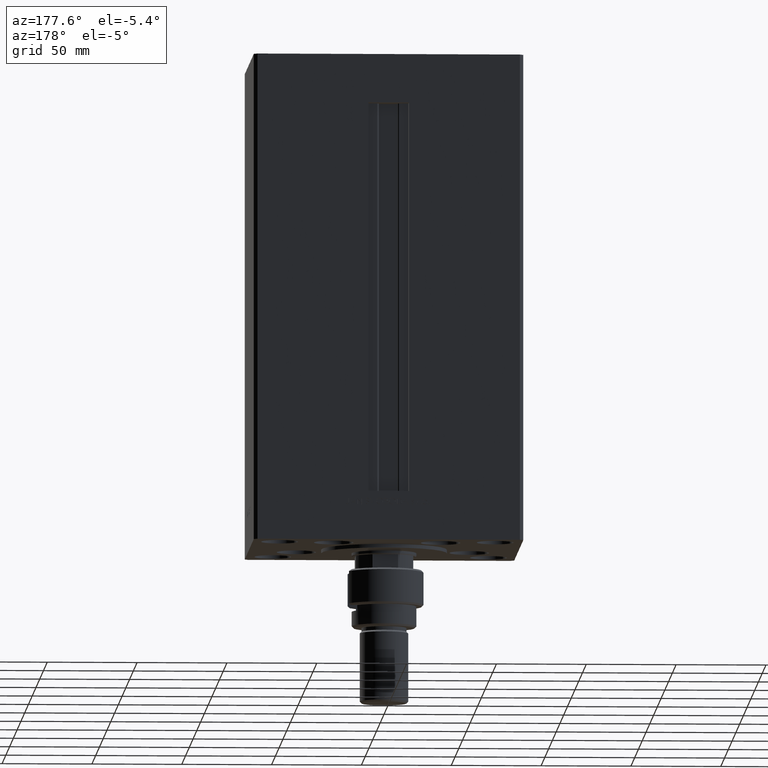
[diagram: clean part render]
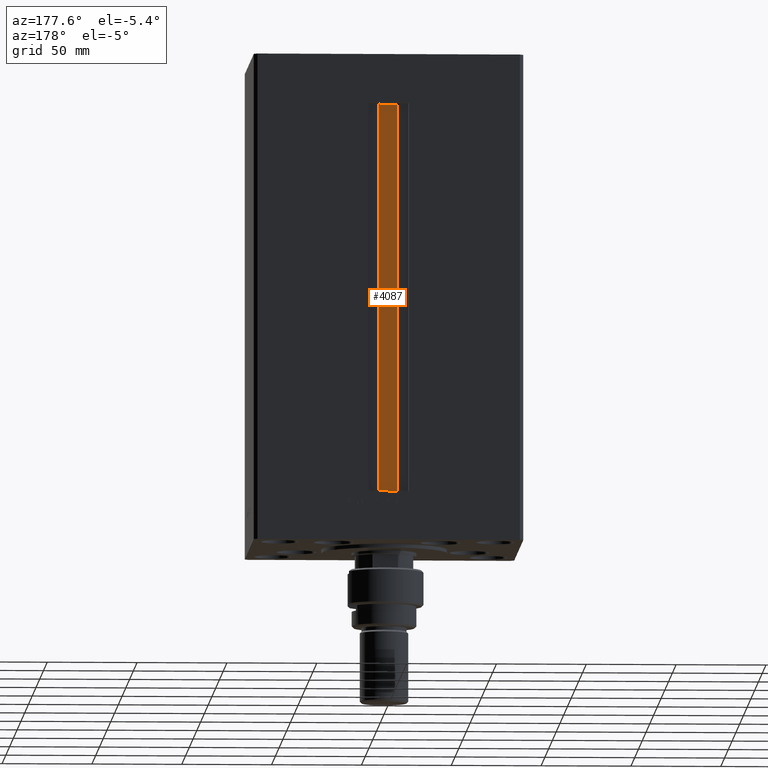
[diagram: same view with one face highlighted and labeled with its STEP entity id]
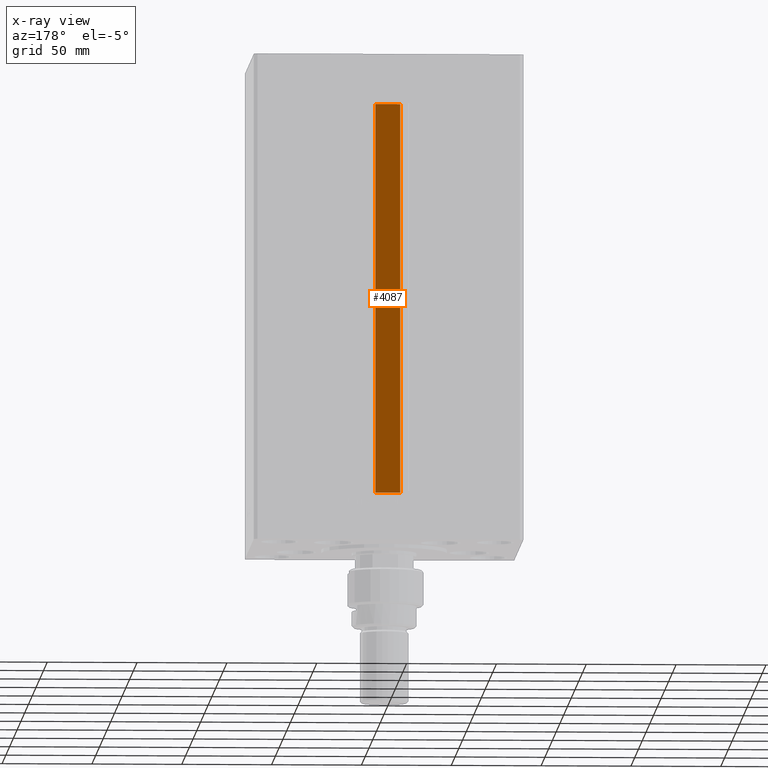
[diagram: x-ray of the same camera — body ghosted, the highlighted face saturated]
A machine part, auxiliary view. The second image highlights one B-rep face of the part: STEP entity #4087.
The next image is the same camera in x-ray: the body ghosted, the highlighted face saturated — about 0% of this face is hidden behind the body in this view.
In plain terms, the highlighted planar face has unit normal (0, -1, 0).
Its self-contained STEP definition (entity closure, byte-faithful):
#1394 = DIRECTION ( 'NONE',  ( 0.000000000000000000, -1.000000000000000000, -0.000000000000000000 ) ) ;
#4087 = ADVANCED_FACE ( 'NONE', ( #12781 ), #28256, .F. ) ;
#4386 = CARTESIAN_POINT ( 'NONE',  ( 6.876153656360466826, 51.99999999999986500, 0.000000000000000000 ) ) ;
#6739 = CARTESIAN_POINT ( 'NONE',  ( -6.876153656360466826, 51.99999999999986500, 0.000000000000000000 ) ) ;
#7905 = LINE ( 'NONE', #42875, #31668 ) ;
#10670 = VERTEX_POINT ( 'NONE', #41810 ) ;
#11949 = LINE ( 'NONE', #4386, #34853 ) ;
#12647 = EDGE_CURVE ( 'NONE', #35820, #10670, #11949, .T. ) ;
#12781 = FACE_OUTER_BOUND ( 'NONE', #21660, .T. ) ;
#14073 = DIRECTION ( 'NONE',  ( -0.000000000000000000, -0.000000000000000000, 1.000000000000000000 ) ) ;
#15751 = DIRECTION ( 'NONE',  ( -0.000000000000000000, -0.000000000000000000, 1.000000000000000000 ) ) ;
#16274 = ORIENTED_EDGE ( 'NONE', *, *, #38962, .T. ) ;
#16836 = DIRECTION ( 'NONE',  ( 0.000000000000000000, 0.000000000000000000, -1.000000000000000000 ) ) ;
#17458 = EDGE_CURVE ( 'NONE', #41169, #33297, #21162, .T. ) ;
#20072 = DIRECTION ( 'NONE',  ( 1.000000000000000000, -0.000000000000000000, -0.000000000000000000 ) ) ;
#21162 = LINE ( 'NONE', #48037, #42339 ) ;
#21660 = EDGE_LOOP ( 'NONE', ( #43697, #25193, #16274, #35624 ) ) ;
#23353 = AXIS2_PLACEMENT_3D ( 'NONE', #39921, #1394, #16836 ) ;
#25193 = ORIENTED_EDGE ( 'NONE', *, *, #12647, .F. ) ;
#28256 = PLANE ( 'NONE',  #23353 ) ;
#30050 = LINE ( 'NONE', #6739, #48523 ) ;
#31668 = VECTOR ( 'NONE', #15751, 1000.000000000000000 ) ;
#33297 = VERTEX_POINT ( 'NONE', #38748 ) ;
#34323 = CARTESIAN_POINT ( 'NONE',  ( 6.876153656360466826, 51.99999999999986500, 217.0000000000000000 ) ) ;
#34853 = VECTOR ( 'NONE', #20072, 1000.000000000000000 ) ;
#35624 = ORIENTED_EDGE ( 'NONE', *, *, #17458, .F. ) ;
#35820 = VERTEX_POINT ( 'NONE', #38202 ) ;
#38202 = CARTESIAN_POINT ( 'NONE',  ( -6.876153656360466826, 51.99999999999986500, 0.000000000000000000 ) ) ;
#38748 = CARTESIAN_POINT ( 'NONE',  ( -6.876153656360466826, 51.99999999999986500, 217.0000000000000000 ) ) ;
#38962 = EDGE_CURVE ( 'NONE', #35820, #33297, #30050, .T. ) ;
#39439 = DIRECTION ( 'NONE',  ( -1.000000000000000000, 0.000000000000000000, 0.000000000000000000 ) ) ;
#39921 = CARTESIAN_POINT ( 'NONE',  ( 6.876153656360466826, 51.99999999999986500, 0.000000000000000000 ) ) ;
#41169 = VERTEX_POINT ( 'NONE', #34323 ) ;
#41810 = CARTESIAN_POINT ( 'NONE',  ( 6.876153656360466826, 51.99999999999986500, 0.000000000000000000 ) ) ;
#42339 = VECTOR ( 'NONE', #39439, 1000.000000000000000 ) ;
#42875 = CARTESIAN_POINT ( 'NONE',  ( 6.876153656360466826, 51.99999999999986500, 0.000000000000000000 ) ) ;
#43337 = EDGE_CURVE ( 'NONE', #10670, #41169, #7905, .T. ) ;
#43697 = ORIENTED_EDGE ( 'NONE', *, *, #43337, .F. ) ;
#48037 = CARTESIAN_POINT ( 'NONE',  ( 0.000000000000000000, 51.99999999999986500, 217.0000000000000000 ) ) ;
#48523 = VECTOR ( 'NONE', #14073, 1000.000000000000000 ) ;